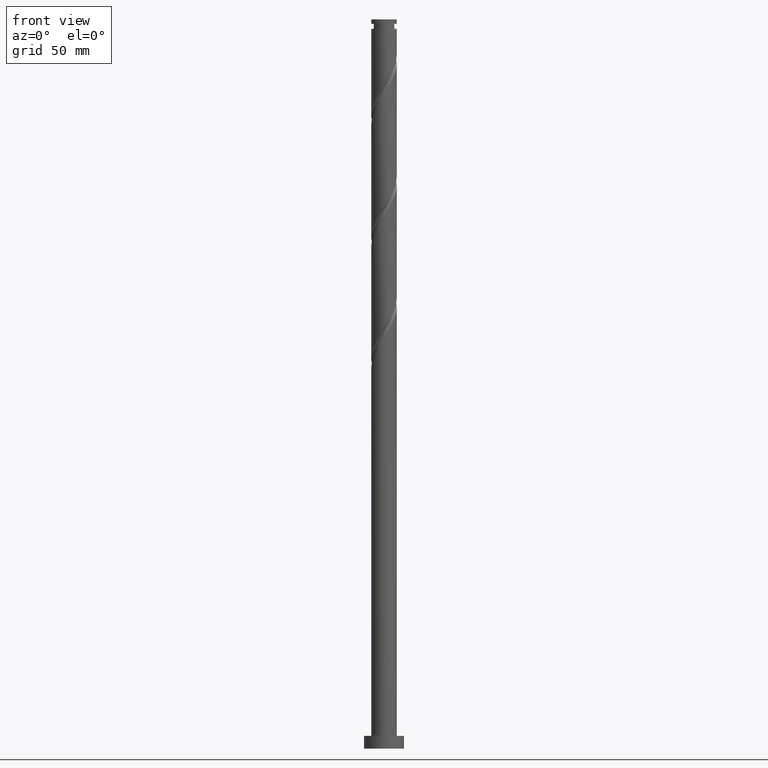
[diagram: clean part render]
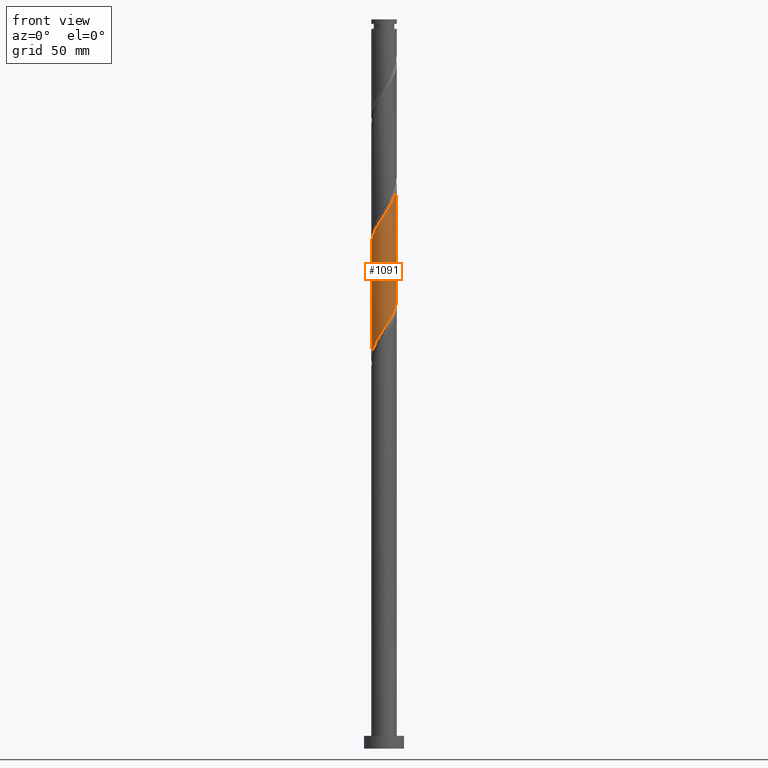
[diagram: same view with one face highlighted and labeled with its STEP entity id]
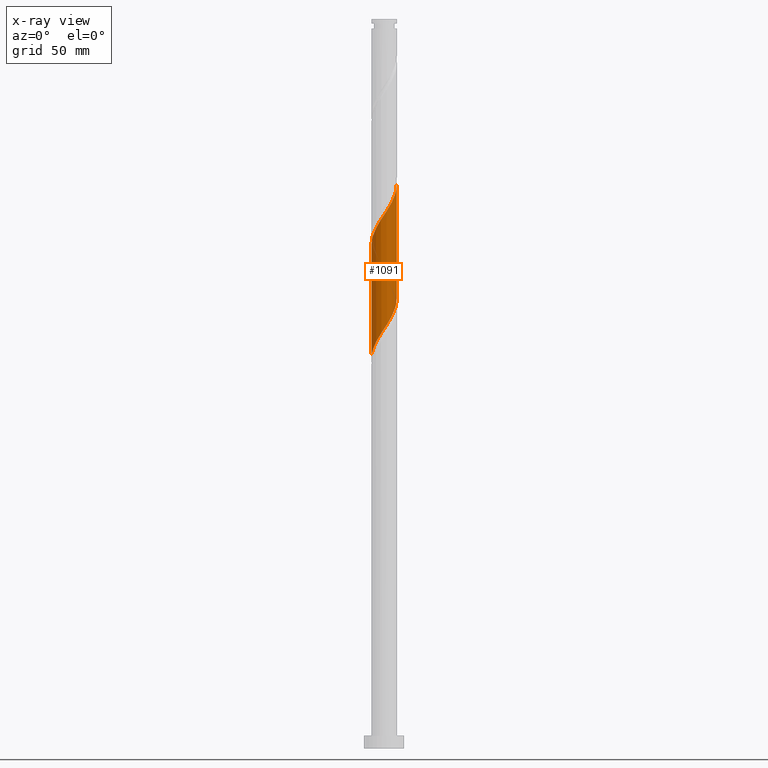
[diagram: x-ray of the same camera — body ghosted, the highlighted face saturated]
A machine part, front view. The second image highlights one B-rep face of the part: STEP entity #1091.
The next image is the same camera in x-ray: the body ghosted, the highlighted face saturated — about 0% of this face is hidden behind the body in this view.
In plain terms, the highlighted cylindrical surface (edge-blend (fillet) strip) has radius 7 mm, axis along (-0, -0, -1).
Its self-contained STEP definition (entity closure, byte-faithful):
#51 = CARTESIAN_POINT ( 'NONE',  ( 4.165886336820081581, -5.625423631042891337, 236.9884515998934660 ) ) ;
#54 = LINE ( 'NONE', #997, #291 ) ;
#64 = DIRECTION ( 'NONE',  ( -1.000000000000000000, 0.000000000000000000, 0.000000000000000000 ) ) ;
#85 = CARTESIAN_POINT ( 'NONE',  ( -6.968026513106292619, -0.6682862505303550638, 276.9884515998935512 ) ) ;
#91 = CARTESIAN_POINT ( 'NONE',  ( -2.905260386594006761, -6.368631099858728994, 288.0995627110046939 ) ) ;
#96 = CARTESIAN_POINT ( 'NONE',  ( 0.06373179489725674940, -6.999709869581680621, 230.3217849332268088 ) ) ;
#102 = ORIENTED_EDGE ( 'NONE', *, *, #883, .F. ) ;
#106 = CARTESIAN_POINT ( 'NONE',  ( -2.113997465871814363, -6.713591648853533655, 226.9884515998934944 ) ) ;
#130 = AXIS2_PLACEMENT_3D ( 'NONE', #539, #1439, #64 ) ;
#205 = CARTESIAN_POINT ( 'NONE',  ( 4.757142185606310747, -5.187571333407684726, 238.0995627110045518 ) ) ;
#242 = CARTESIAN_POINT ( 'NONE',  ( -2.235890285154152224, -6.673986271039353824, 289.2106738221156093 ) ) ;
#246 =( BOUNDED_CURVE ( )  B_SPLINE_CURVE ( 2, ( #649, #1254, #1265, #1109, #1733, #354, #683, #960, #1583, #205, #51, #528, #1136, #1759, #400, #1502, #96, #1639, #1493, #106, #1176, #1651, #1337, #1064, #305, #892, #769, #1225, #630, #1883, #368, #964, #1289 ),
 .UNSPECIFIED., .F., .T. ) 
 B_SPLINE_CURVE_WITH_KNOTS ( ( 3, 2, 2, 2, 2, 2, 2, 2, 2, 2, 2, 2, 2, 2, 2, 2, 3 ),
 ( 0.8045286012773114059, 0.8083333333333333481, 0.8166666666666666519, 0.8249999999999999556, 0.8333333333333333703, 0.8416666666666666741, 0.8499999999999999778, 0.8583333333333332815, 0.8666666666666666963, 0.8750000000000000000, 0.8833333333333333037, 0.8916666666666667185, 0.9000000000000000222, 0.9083333333333333259, 0.9166666666666666297, 0.9250000000000000444, 0.9295286012773115170 ),
 .UNSPECIFIED. ) 
 CURVE ( )  GEOMETRIC_REPRESENTATION_ITEM ( )  RATIONAL_B_SPLINE_CURVE ( ( 0.9066196499552172661, 0.9068171577856298793, 0.9090909090909288226, 0.9041108139711772074, 0.9090909090909288226, 0.9041108139711772074, 0.9090909090909288226, 0.9041108139711772074, 0.9090909090909288226, 0.9041108139711772074, 0.9090909090909288226, 0.9041108139711772074, 0.9090909090909288226, 0.9041108139711772074, 0.9090909090909288226, 0.9041108139711772074, 0.9090909090909288226, 0.9041108139711772074, 0.9090909090909288226, 0.9041108139711772074, 0.9090909090909288226, 0.9041108139711772074, 0.9090909090909288226, 0.9041108139711772074, 0.9090909090909288226, 0.9041108139711772074, 0.9090909090909288226, 0.9041108139711772074, 0.9090909090909288226, 0.9041108139711772074, 0.9090909090909288226, 0.9063845652764760397, 0.9066196499552172661 ) ) 
 REPRESENTATION_ITEM ( '' )  );
#291 = VECTOR ( 'NONE', #1287, 1000.000000000000000 ) ;
#305 = CARTESIAN_POINT ( 'NONE',  ( -5.159153274858732097, -4.731082062965556112, 221.4328960443379231 ) ) ;
#354 = CARTESIAN_POINT ( 'NONE',  ( 6.455840984887133871, -2.804178184623777437, 242.5440071554490373 ) ) ;
#368 = CARTESIAN_POINT ( 'NONE',  ( -6.954702939942481343, -0.7950515814432431716, 214.7662293776712659 ) ) ;
#376 = CARTESIAN_POINT ( 'NONE',  ( 6.871139651478132215, -1.526020315445858699, 306.9884515998934944 ) ) ;
#385 = CARTESIAN_POINT ( 'NONE',  ( -5.244443063986621745, -4.636358155772994927, 283.6551182665601800 ) ) ;
#400 = CARTESIAN_POINT ( 'NONE',  ( 1.517660616487694236, -6.833498829528121377, 232.5440071554491226 ) ) ;
#402 = CARTESIAN_POINT ( 'NONE',  ( 6.954702939942492890, -0.7950515814432469464, 308.0995627110045803 ) ) ;
#508 = LINE ( 'NONE', #1297, #2014 ) ;
#518 = CARTESIAN_POINT ( 'NONE',  ( 7.000000000000000888, 7.384517217808689599E-15, 246.8916726211927539 ) ) ;
#528 = CARTESIAN_POINT ( 'NONE',  ( 3.574630488033851972, -6.063275928678096172, 235.8773404887824086 ) ) ;
#539 = CARTESIAN_POINT ( 'NONE',  ( 0.000000000000000000, 0.000000000000000000, 400.0000000000000000 ) ) ;
#577 = CARTESIAN_POINT ( 'NONE',  ( -6.676813891346439434, -2.102416766562563044, 279.2106738221157798 ) ) ;
#630 = CARTESIAN_POINT ( 'NONE',  ( -6.637425475935885721, -2.223641844227008946, 216.9884515998934660 ) ) ;
#649 = CARTESIAN_POINT ( 'NONE',  ( 7.000000000000000888, 7.384517217808689599E-15, 246.8916726211927539 ) ) ;
#672 = CARTESIAN_POINT ( 'NONE',  ( 6.030060668729772644, -3.555048288200653328, 303.6551182665601800 ) ) ;
#683 = CARTESIAN_POINT ( 'NONE',  ( 6.093792463627021760, -3.444661581381036175, 241.4328960443379231 ) ) ;
#693 = ORIENTED_EDGE ( 'NONE', *, *, #1159, .F. ) ;
#704 = EDGE_LOOP ( 'NONE', ( #1192, #102, #1426, #693 ) ) ;
#711 = CARTESIAN_POINT ( 'NONE',  ( 2.113997465871811698, -6.713591648853546090, 295.8773404887822949 ) ) ;
#769 = CARTESIAN_POINT ( 'NONE',  ( -6.030060668729767315, -3.555048288200643114, 219.2106738221156945 ) ) ;
#826 = VERTEX_POINT ( 'NONE', #1027 ) ;
#840 = CARTESIAN_POINT ( 'NONE',  ( 6.403711300393656991, -2.921263373008176512, 304.7662293776712659 ) ) ;
#845 = CARTESIAN_POINT ( 'NONE',  ( 0.6719673580267300217, -7.006408351146476754, 293.6551182665602369 ) ) ;
#862 = CARTESIAN_POINT ( 'NONE',  ( 4.661896512651583002, -5.273330922538004728, 300.3217849332268088 ) ) ;
#883 = EDGE_CURVE ( 'NONE', #826, #1389, #1330, .T. ) ;
#892 = CARTESIAN_POINT ( 'NONE',  ( -5.656410037065885632, -4.188833203393120819, 220.3217849332268088 ) ) ;
#960 = CARTESIAN_POINT ( 'NONE',  ( 5.731743942366910538, -4.085144978138298910, 240.3217849332267804 ) ) ;
#964 = CARTESIAN_POINT ( 'NONE',  ( -7.000000000000001776, -0.3988161621250231326, 214.1639305972439900 ) ) ;
#986 = CARTESIAN_POINT ( 'NONE',  ( 7.000000000000012434, 3.737103855166317141E-15, 309.3074528008164066 ) ) ;
#997 = CARTESIAN_POINT ( 'NONE',  ( 7.000000000000000888, 8.572527594031474176E-16, 400.0000000000000000 ) ) ;
#1003 = VERTEX_POINT ( 'NONE', #1449 ) ;
#1013 = CARTESIAN_POINT ( 'NONE',  ( 4.062766126512283194, -5.700344849328375041, 299.2106738221156661 ) ) ;
#1022 = CARTESIAN_POINT ( 'NONE',  ( -4.757142185606320517, -5.187571333407690055, 284.7662293776712659 ) ) ;
#1024 = VERTEX_POINT ( 'NONE', #518 ) ;
#1027 = CARTESIAN_POINT ( 'NONE',  ( -7.000000000000010658, -6.158747153314091299E-15, 275.9741194674830922 ) ) ;
#1034 = CARTESIAN_POINT ( 'NONE',  ( -6.455840984887144529, -2.804178184623776104, 280.3217849332268088 ) ) ;
#1058 = EDGE_CURVE ( 'NONE', #826, #1003, #508, .T. ) ;
#1064 = CARTESIAN_POINT ( 'NONE',  ( -4.661896512651579449, -5.273330922537993182, 222.5440071554490089 ) ) ;
#1091 = ADVANCED_FACE ( 'NONE', ( #1890 ), #1595, .T. ) ;
#1109 = CARTESIAN_POINT ( 'NONE',  ( 6.897786797805721903, -1.400655348501352204, 244.7662293776712943 ) ) ;
#1111 = CARTESIAN_POINT ( 'NONE',  ( 6.637425475935893715, -2.223641844227016939, 305.8773404887824086 ) ) ;
#1136 = CARTESIAN_POINT ( 'NONE',  ( 2.905260386593998323, -6.368631099858720113, 234.7662293776712090 ) ) ;
#1159 = EDGE_CURVE ( 'NONE', #1024, #1003, #246, .T. ) ;
#1163 = CARTESIAN_POINT ( 'NONE',  ( 2.788816603122401538, -6.420475212486143946, 296.9884515998933807 ) ) ;
#1176 = CARTESIAN_POINT ( 'NONE',  ( -2.788816603122402427, -6.420475212486133287, 225.8773404887823233 ) ) ;
#1179 = CARTESIAN_POINT ( 'NONE',  ( -0.7994309478212519027, -6.993011388016906693, 291.4328960443379515 ) ) ;
#1192 = ORIENTED_EDGE ( 'NONE', *, *, #1415, .F. ) ;
#1225 = CARTESIAN_POINT ( 'NONE',  ( -6.403711300393647221, -2.921263373008168962, 218.0995627110046371 ) ) ;
#1254 = CARTESIAN_POINT ( 'NONE',  ( 7.000000000000002665, -0.3349079950072459955, 246.3831240956287445 ) ) ;
#1265 = CARTESIAN_POINT ( 'NONE',  ( 6.968026513106281961, -0.6682862505303600598, 245.8773404887823801 ) ) ;
#1275 = DIRECTION ( 'NONE',  ( -0.000000000000000000, -0.000000000000000000, -1.000000000000000000 ) ) ;
#1286 = CARTESIAN_POINT ( 'NONE',  ( 7.000000000000012434, 3.737103855166317141E-15, 309.3074528008164066 ) ) ;
#1287 = DIRECTION ( 'NONE',  ( -0.000000000000000000, -0.000000000000000000, -1.000000000000000000 ) ) ;
#1289 = CARTESIAN_POINT ( 'NONE',  ( -7.000000000000002665, 9.178327068288536215E-15, 213.5583392878594111 ) ) ;
#1297 = CARTESIAN_POINT ( 'NONE',  ( -7.000000000000000888, 0.000000000000000000, 400.0000000000000000 ) ) ;
#1330 =( BOUNDED_CURVE ( )  B_SPLINE_CURVE ( 2, ( #1459, #1490, #85, #1972, #577, #1034, #1499, #1347, #385, #1022, #1770, #1968, #91, #242, #1954, #1179, #1633, #845, #1933, #711, #1163, #1782, #1013, #862, #1735, #1916, #672, #840, #1111, #376, #402, #1778, #1286 ),
 .UNSPECIFIED., .F., .T. ) 
 B_SPLINE_CURVE_WITH_KNOTS ( ( 3, 2, 2, 2, 2, 2, 2, 2, 2, 2, 2, 2, 2, 2, 2, 2, 3 ),
 ( 0.3045286012773112949, 0.3083333333333333481, 0.3166666666666666519, 0.3249999999999999556, 0.3333333333333333703, 0.3416666666666666741, 0.3499999999999999778, 0.3583333333333332815, 0.3666666666666666963, 0.3750000000000000000, 0.3833333333333333037, 0.3916666666666667185, 0.4000000000000000222, 0.4083333333333333259, 0.4166666666666666297, 0.4250000000000000444, 0.4295286012773114614 ),
 .UNSPECIFIED. ) 
 CURVE ( )  GEOMETRIC_REPRESENTATION_ITEM ( )  RATIONAL_B_SPLINE_CURVE ( ( 0.9066196499552230392, 0.9068171577856357635, 0.9090909090909347068, 0.9041108139711830916, 0.9090909090909347068, 0.9041108139711830916, 0.9090909090909347068, 0.9041108139711830916, 0.9090909090909347068, 0.9041108139711830916, 0.9090909090909347068, 0.9041108139711830916, 0.9090909090909347068, 0.9041108139711830916, 0.9090909090909347068, 0.9041108139711830916, 0.9090909090909347068, 0.9041108139711830916, 0.9090909090909347068, 0.9041108139711830916, 0.9090909090909347068, 0.9041108139711830916, 0.9090909090909347068, 0.9041108139711830916, 0.9090909090909347068, 0.9041108139711830916, 0.9090909090909347068, 0.9041108139711830916, 0.9090909090909347068, 0.9041108139711830916, 0.9090909090909347068, 0.9063845652764819238, 0.9066196499552230392 ) ) 
 REPRESENTATION_ITEM ( '' )  );
#1337 = CARTESIAN_POINT ( 'NONE',  ( -4.062766126512282305, -5.700344849328362606, 223.6551182665601516 ) ) ;
#1347 = CARTESIAN_POINT ( 'NONE',  ( -5.731743942366925637, -4.085144978138299798, 282.5440071554491510 ) ) ;
#1389 = VERTEX_POINT ( 'NONE', #986 ) ;
#1415 = EDGE_CURVE ( 'NONE', #1389, #1024, #54, .T. ) ;
#1426 = ORIENTED_EDGE ( 'NONE', *, *, #1058, .T. ) ;
#1439 = DIRECTION ( 'NONE',  ( -0.000000000000000000, -0.000000000000000000, -1.000000000000000000 ) ) ;
#1449 = CARTESIAN_POINT ( 'NONE',  ( -7.000000000000002665, 9.178327068288536215E-15, 213.5583392878593827 ) ) ;
#1459 = CARTESIAN_POINT ( 'NONE',  ( -7.000000000000010658, -6.158747153314091299E-15, 275.9741194674830922 ) ) ;
#1490 = CARTESIAN_POINT ( 'NONE',  ( -7.000000000000012434, -0.3349079950072300638, 276.4826679930471869 ) ) ;
#1493 = CARTESIAN_POINT ( 'NONE',  ( -1.392982411949273525, -6.859999999999999432, 228.0995627110046087 ) ) ;
#1499 = CARTESIAN_POINT ( 'NONE',  ( -6.093792463627035083, -3.444661581381038395, 281.4328960443379515 ) ) ;
#1502 = CARTESIAN_POINT ( 'NONE',  ( 0.7994309478212480169, -6.993011388016896035, 231.4328960443379231 ) ) ;
#1583 = CARTESIAN_POINT ( 'NONE',  ( 5.244443063986611087, -4.636358155772994039, 239.2106738221157229 ) ) ;
#1595 = CYLINDRICAL_SURFACE ( 'NONE', #130, 7.000000000000000888 ) ;
#1633 = CARTESIAN_POINT ( 'NONE',  ( -0.06373179489726249480, -6.999709869581691279, 292.5440071554490373 ) ) ;
#1639 = CARTESIAN_POINT ( 'NONE',  ( -0.6719673580267349067, -7.006408351146466984, 229.2106738221156661 ) ) ;
#1651 = CARTESIAN_POINT ( 'NONE',  ( -3.463635740372986049, -6.127358776118730255, 224.7662293776712374 ) ) ;
#1733 = CARTESIAN_POINT ( 'NONE',  ( 6.676813891346426999, -2.102416766562567485, 243.6551182665601516 ) ) ;
#1735 = CARTESIAN_POINT ( 'NONE',  ( 5.159153274858738314, -4.731082062965566770, 301.4328960443379515 ) ) ;
#1759 = CARTESIAN_POINT ( 'NONE',  ( 2.235890285154144230, -6.673986271039347606, 233.6551182665601232 ) ) ;
#1770 = CARTESIAN_POINT ( 'NONE',  ( -4.165886336820090463, -5.625423631042894890, 285.8773404887824654 ) ) ;
#1778 = CARTESIAN_POINT ( 'NONE',  ( 7.000000000000012434, -0.3988161621250326805, 308.7018614914318846 ) ) ;
#1782 = CARTESIAN_POINT ( 'NONE',  ( 3.463635740372989602, -6.127358776118742689, 298.0995627110045803 ) ) ;
#1883 = CARTESIAN_POINT ( 'NONE',  ( -6.871139651478124222, -1.526020315445849374, 215.8773404887823801 ) ) ;
#1890 = FACE_OUTER_BOUND ( 'NONE', #704, .T. ) ;
#1916 = CARTESIAN_POINT ( 'NONE',  ( 5.656410037065890961, -4.188833203393128812, 302.5440071554491510 ) ) ;
#1933 = CARTESIAN_POINT ( 'NONE',  ( 1.392982411949272858, -6.860000000000010090, 294.7662293776712659 ) ) ;
#1954 = CARTESIAN_POINT ( 'NONE',  ( -1.517660616487702452, -6.833498829528129370, 290.3217849332268088 ) ) ;
#1968 = CARTESIAN_POINT ( 'NONE',  ( -3.574630488033860853, -6.063275928678102389, 286.9884515998934944 ) ) ;
#1972 = CARTESIAN_POINT ( 'NONE',  ( -6.897786797805730785, -1.400655348501351316, 278.0995627110045803 ) ) ;
#2014 = VECTOR ( 'NONE', #1275, 1000.000000000000000 ) ;